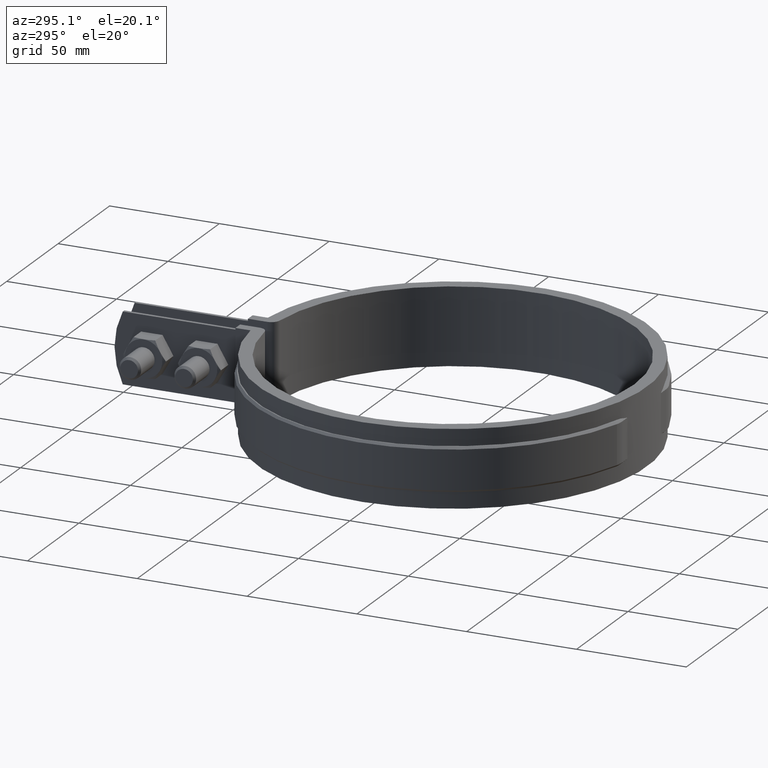
[diagram: clean part render]
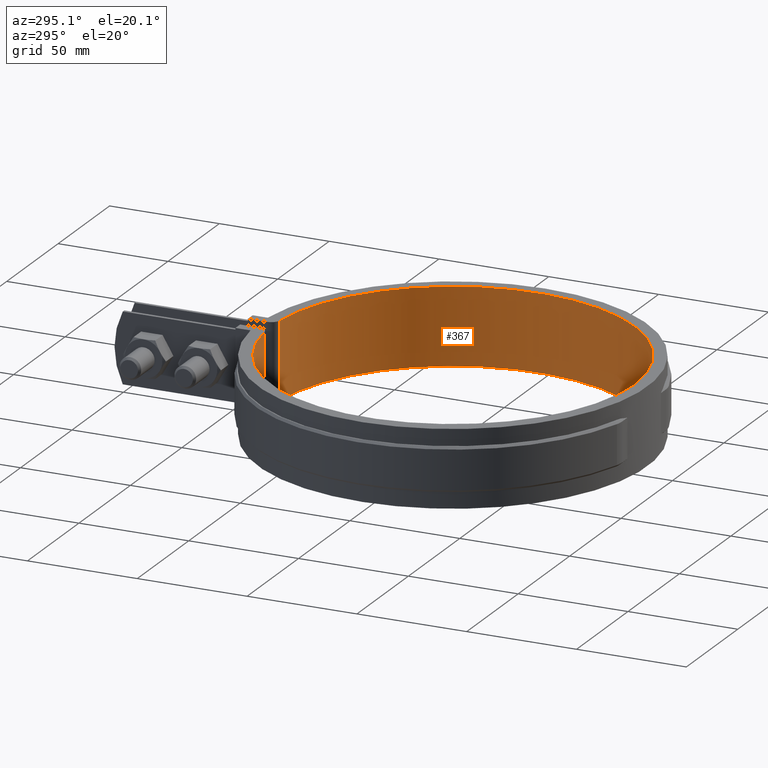
[diagram: same view with one face highlighted and labeled with its STEP entity id]
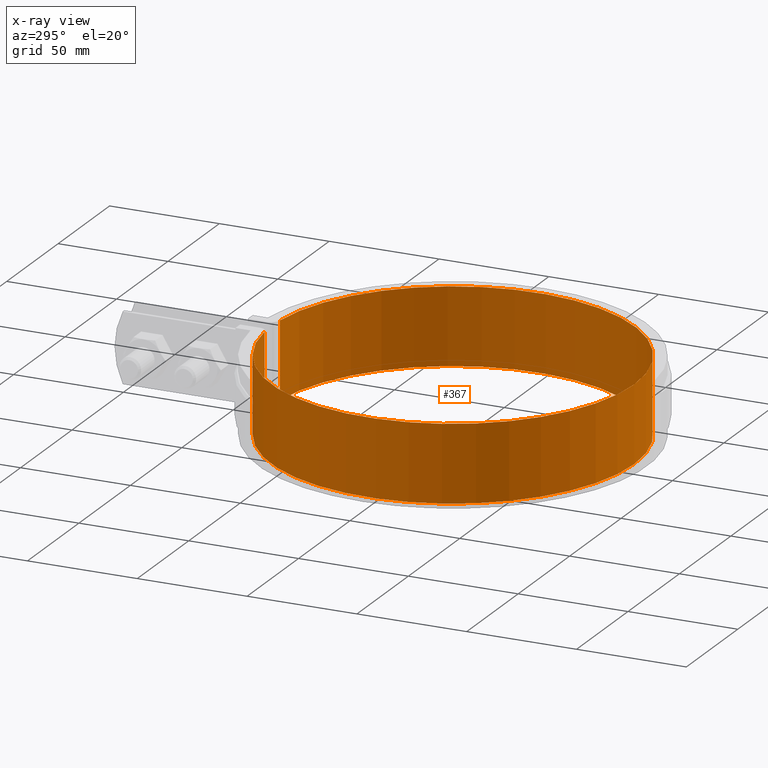
[diagram: x-ray of the same camera — body ghosted, the highlighted face saturated]
A machine part, auxiliary view. The second image highlights one B-rep face of the part: STEP entity #367.
The next image is the same camera in x-ray: the body ghosted, the highlighted face saturated — about 0% of this face is hidden behind the body in this view.
In plain terms, the highlighted cylindrical surface (partial cylindrical patch) has radius 82.6 mm, axis along (0, -0, -1).
Its self-contained STEP definition (entity closure, byte-faithful):
#367 = ADVANCED_FACE( '', ( #590 ), #591, .F. );
#590 = FACE_OUTER_BOUND( '', #1676, .T. );
#591 = CYLINDRICAL_SURFACE( '', #1677, 82.6000000000007 );
#1676 = EDGE_LOOP( '', ( #3836, #3837, #3838, #3839 ) );
#1677 = AXIS2_PLACEMENT_3D( '', #3840, #3841, #3842 );
#3836 = ORIENTED_EDGE( '', *, *, #4781, .F. );
#3837 = ORIENTED_EDGE( '', *, *, #4780, .F. );
#3838 = ORIENTED_EDGE( '', *, *, #4782, .T. );
#3839 = ORIENTED_EDGE( '', *, *, #4783, .T. );
#3840 = CARTESIAN_POINT( '', ( -6.24500451351651E-014, -6.24500451351651E-013, -33.5000000000000 ) );
#3841 = DIRECTION( '', ( 0.000000000000000, -2.54514470950076E-019, -1.00000000000000 ) );
#3842 = DIRECTION( '', ( 0.000000000000000, 1.00000000000000, -2.54514470950076E-019 ) );
#4780 = EDGE_CURVE( '', #5288, #5286, #5290, .T. );
#4781 = EDGE_CURVE( '', #5286, #5291, #5292, .T. );
#4782 = EDGE_CURVE( '', #5288, #5293, #5294, .T. );
#4783 = EDGE_CURVE( '', #5293, #5291, #5295, .T. );
#5286 = VERTEX_POINT( '', #8016 );
#5288 = VERTEX_POINT( '', #8018 );
#5290 = LINE( '', #8020, #8021 );
#5291 = VERTEX_POINT( '', #8022 );
#5292 = CIRCLE( '', #8023, 82.6000000000007 );
#5293 = VERTEX_POINT( '', #8024 );
#5294 = CIRCLE( '', #8025, 82.6000000000007 );
#5295 = LINE( '', #8026, #8027 );
#8016 = CARTESIAN_POINT( '', ( 7.43972286374133, 82.2642724620520, 1.50000000000000 ) );
#8018 = CARTESIAN_POINT( '', ( 7.43972286374133, 82.2642724620520, -33.5000000000000 ) );
#8020 = CARTESIAN_POINT( '', ( 7.43972286374133, 82.2642724620520, -33.5000000000000 ) );
#8021 = VECTOR( '', #8824, 1000.00000000000 );
#8022 = CARTESIAN_POINT( '', ( -7.43972286374120, 82.2642724620520, 1.50000000000000 ) );
#8023 = AXIS2_PLACEMENT_3D( '', #8825, #8826, #8827 );
#8024 = CARTESIAN_POINT( '', ( -7.43972286374120, 82.2642724620520, -33.5000000000000 ) );
#8025 = AXIS2_PLACEMENT_3D( '', #8828, #8829, #8830 );
#8026 = CARTESIAN_POINT( '', ( -7.43972286374120, 82.2642724620520, -33.5000000000000 ) );
#8027 = VECTOR( '', #8831, 1000.00000000000 );
#8824 = DIRECTION( '', ( 0.000000000000000, 2.54514470950076E-019, 1.00000000000000 ) );
#8825 = CARTESIAN_POINT( '', ( -6.24500451351651E-014, -6.24500451351651E-013, 1.50000000000000 ) );
#8826 = DIRECTION( '', ( 0.000000000000000, -2.54514470950076E-019, -1.00000000000000 ) );
#8827 = DIRECTION( '', ( 1.00000000000000, 0.000000000000000, 0.000000000000000 ) );
#8828 = CARTESIAN_POINT( '', ( -6.24500451351651E-014, -6.24500451351651E-013, -33.5000000000000 ) );
#8829 = DIRECTION( '', ( 0.000000000000000, -2.54514470950076E-019, -1.00000000000000 ) );
#8830 = DIRECTION( '', ( 1.00000000000000, 0.000000000000000, 0.000000000000000 ) );
#8831 = DIRECTION( '', ( 0.000000000000000, 2.54514470950076E-019, 1.00000000000000 ) );